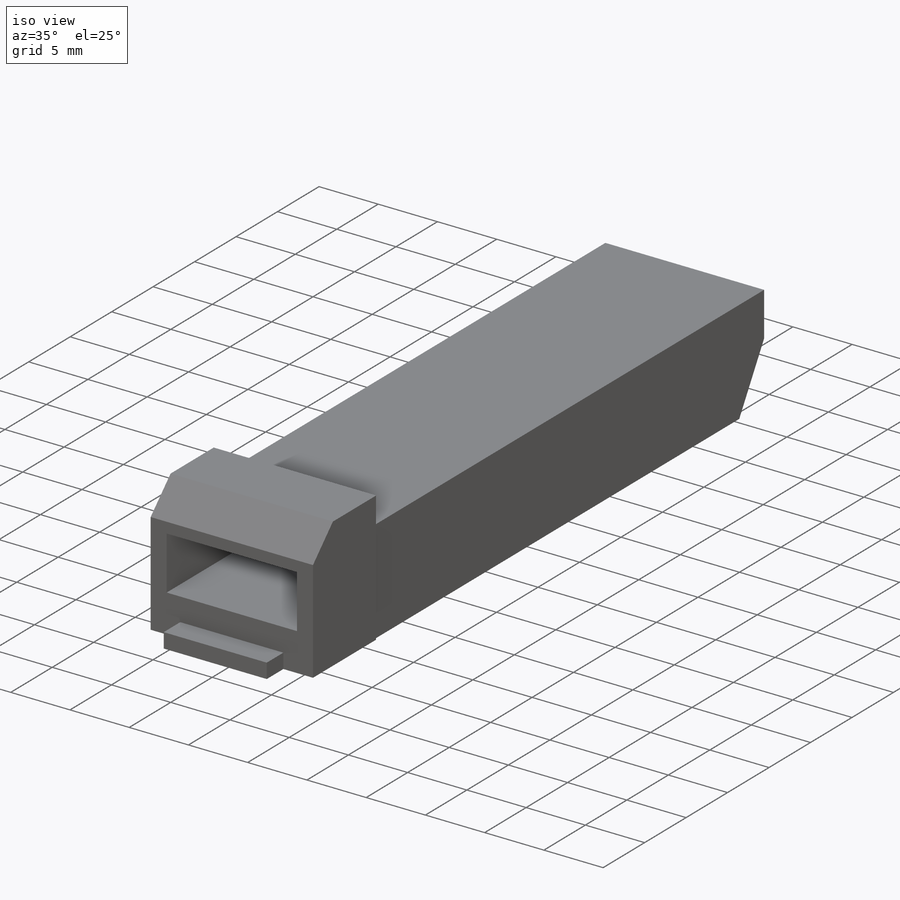
[diagram: iso view]
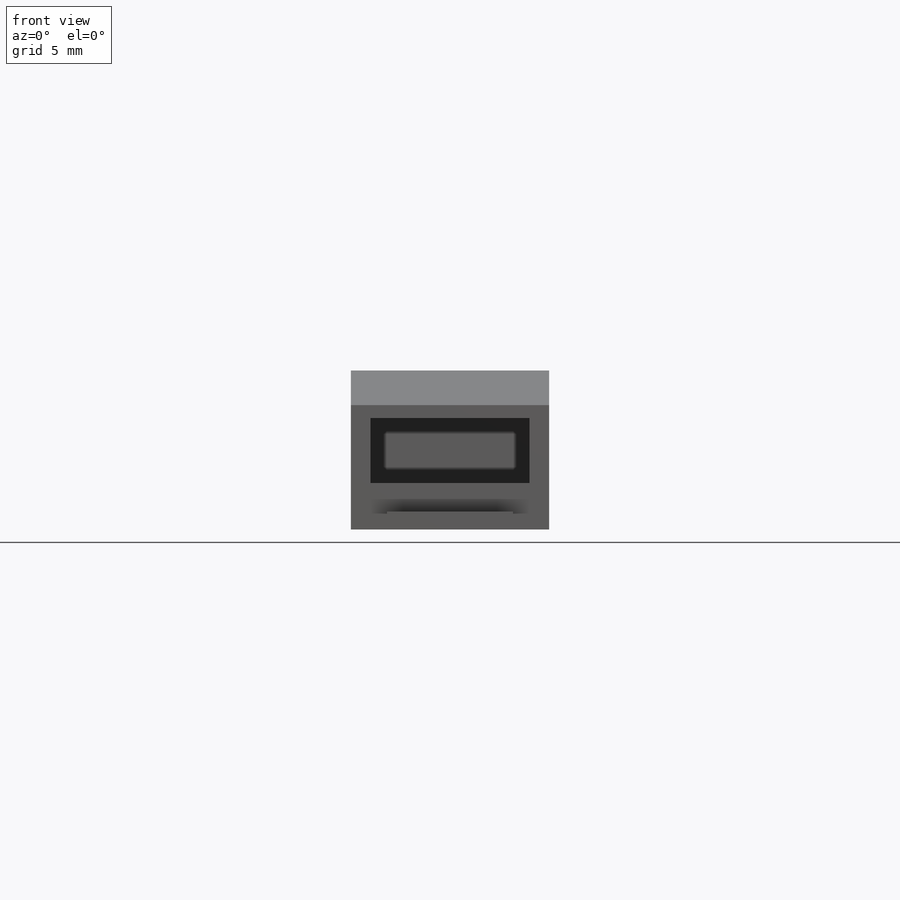
[diagram: front view]
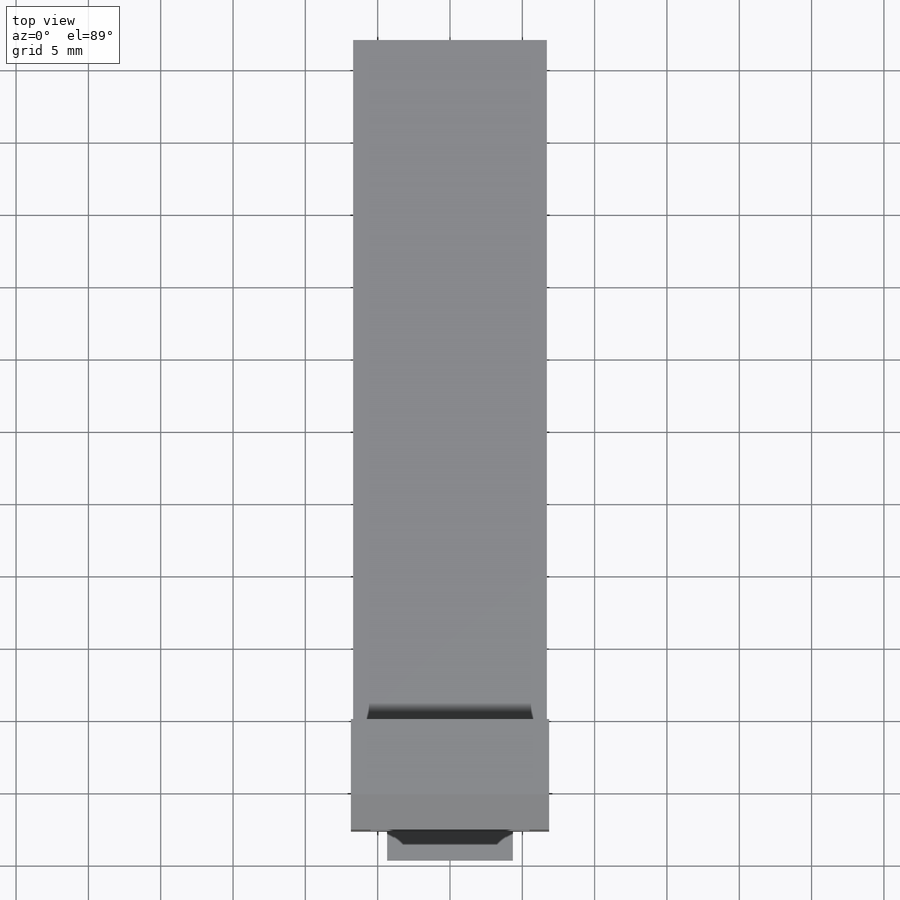
[diagram: top view]
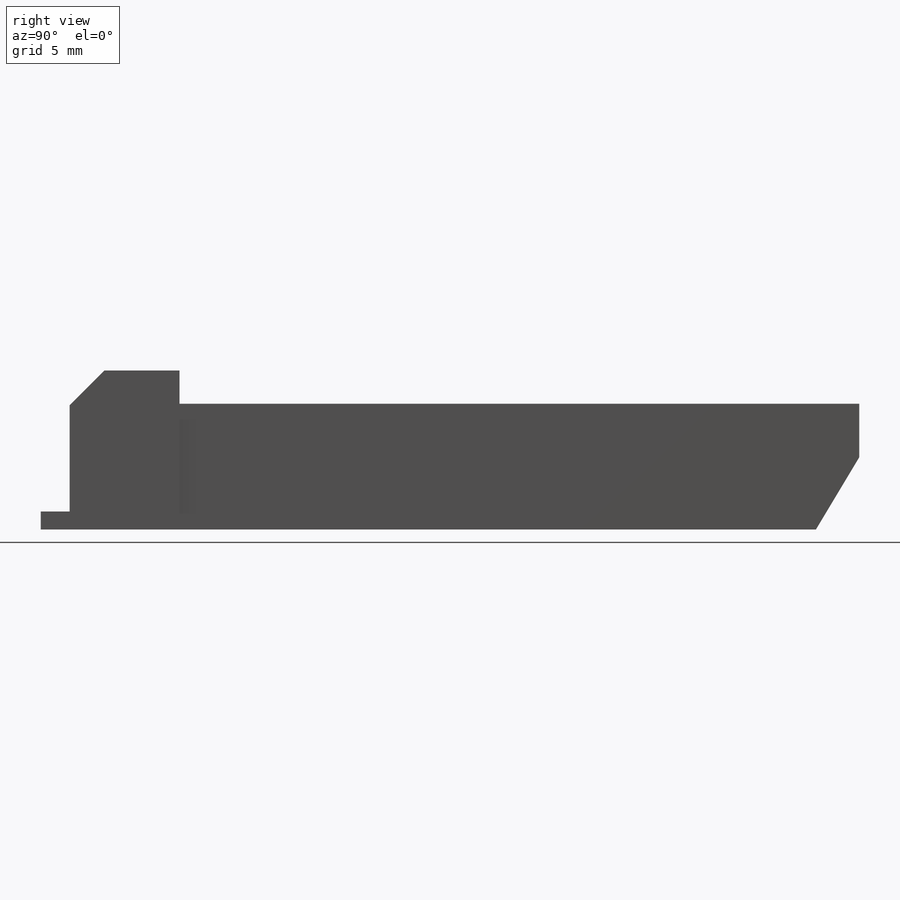
[diagram: right view]
SOLIDWORKS PART (.sldprt)
format: sldprt  version: not decoded by parser v0  size: 202,240 bytes
history: native  units: mm
features: sketch x6, extrude x3, cut_extrude x3, plane x2, material x1 (+13 scaffold rows collapsed)
feature tree (28):
  scaffold x13  (default folders/planes/origin — collapsed)
  material  "Material <not specified>"
  sketch  "Sketch1"  dims[c1.D1=~65.207536mm c1.D2=~63.491549mm c2.D1=47.0mm]
  extrude  "Boss-Extrude1"  Depth=8.7mm
  sketch  "Sketch2"  dims[D1=~5.830952mm]
  cut_extrude  "Cut-Extrude1"  [1 undecoded]
  sketch  "Sketch3"  dims[c1.D1=~13.098372mm c1.D2=~16.905916mm c2.D1=11.0mm]
  extrude  "Boss-Extrude2"  Depth=7.6mm
  sketch  "Sketch4"  dims[D1=~3.394113mm]
  cut_extrude  "Cut-Extrude2"  [1 undecoded]
  sketch  "Sketch5"  dims[D1=1.25mm D2=13.7mm]
  extrude  "Boss-Extrude3"  Depth=2mm
  plane  "Plane1"
  plane  "Plane2"
  sketch  "Sketch7"  dims[c1.D1=~5.17618mm c1.D2=~9.667499mm c2.D1=11.0mm]
  cut_extrude  "Cut-Extrude3"  Depth=9.5mm
decode coverage: 10 of 12 modeling features carry decoded parameters
note: ~ marks probable driven/reference dimensions
note: 2 parameter values undecoded
note: suppression state not decoded; provenance and decode notes live in map.json
